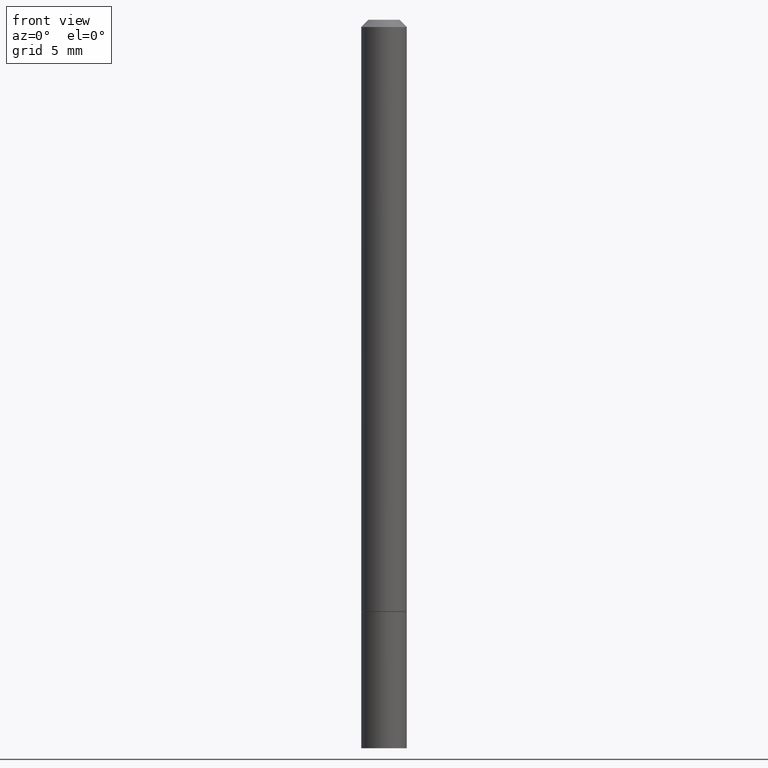
[diagram: clean part render]
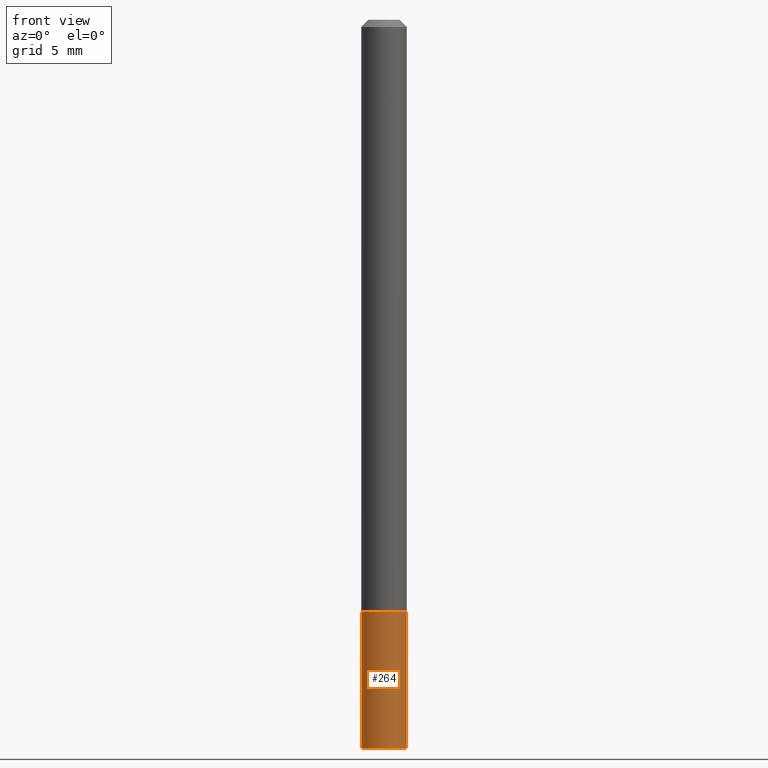
[diagram: same view with one face highlighted and labeled with its STEP entity id]
A machine part, front view. The second image highlights one B-rep face of the part: STEP entity #264.
In plain terms, the highlighted cylindrical surface (edge-blend (fillet) strip) has radius 1.5875 mm, axis along (-0, 0, 1).
Its self-contained STEP definition (entity closure, byte-faithful):
#9 = VERTEX_POINT ( 'NONE', #109 ) ;
#26 = DIRECTION ( 'NONE',  ( -2.445468806185136877E-29, 3.491481338843145188E-15, 1.000000000000000000 ) ) ;
#35 = EDGE_LOOP ( 'NONE', ( #156, #94, #207, #153 ) ) ;
#46 = DIRECTION ( 'NONE',  ( -2.445468806185136597E-29, 3.491481338843145583E-15, 1.000000000000000000 ) ) ;
#49 = CARTESIAN_POINT ( 'NONE',  ( 0.06250000000000001388, -4.364351673553918173E-16, 3.047610484872460571E-30 ) ) ;
#75 = EDGE_CURVE ( 'NONE', #203, #9, #193, .T. ) ;
#81 = CARTESIAN_POINT ( 'NONE',  ( 3.973886810050846970E-29, -5.673657175620112213E-15, -1.625000000000000000 ) ) ;
#83 = DIRECTION ( 'NONE',  ( -2.445468806185136597E-29, 3.491481338843145583E-15, 1.000000000000000000 ) ) ;
#92 = VERTEX_POINT ( 'NONE', #301 ) ;
#94 = ORIENTED_EDGE ( 'NONE', *, *, #75, .T. ) ;
#95 = CARTESIAN_POINT ( 'NONE',  ( -0.06250000000000001388, -5.884220716803138678E-15, -1.625000000000000000 ) ) ;
#109 = CARTESIAN_POINT ( 'NONE',  ( 0.06250000000000001388, -7.419397845041682046E-15, -2.000000000000000000 ) ) ;
#114 = VECTOR ( 'NONE', #298, 39.37007874015748143 ) ;
#129 = CYLINDRICAL_SURFACE ( 'NONE', #217, 0.06250000000000001388 ) ;
#132 = DIRECTION ( 'NONE',  ( 1.000000000000000000, -6.982962677686261189E-15, 0.000000000000000000 ) ) ;
#136 = EDGE_CURVE ( 'NONE', #203, #181, #257, .T. ) ;
#138 = DIRECTION ( 'NONE',  ( 1.000000000000000000, -6.982962677686267499E-15, 4.876176775795935793E-29 ) ) ;
#153 = ORIENTED_EDGE ( 'NONE', *, *, #195, .F. ) ;
#156 = ORIENTED_EDGE ( 'NONE', *, *, #136, .F. ) ;
#168 = AXIS2_PLACEMENT_3D ( 'NONE', #81, #83, #192 ) ;
#181 = VERTEX_POINT ( 'NONE', #95 ) ;
#187 = CIRCLE ( 'NONE', #168, 0.06250000000000001388 ) ;
#192 = DIRECTION ( 'NONE',  ( 1.000000000000000000, -6.982962677686261189E-15, 0.000000000000000000 ) ) ;
#193 = CIRCLE ( 'NONE', #296, 0.06250000000000001388 ) ;
#195 = EDGE_CURVE ( 'NONE', #181, #92, #187, .T. ) ;
#203 = VERTEX_POINT ( 'NONE', #339 ) ;
#206 = CARTESIAN_POINT ( 'NONE',  ( -0.06250000000000001388, 4.440892098500627148E-16, -3.074334431409317165E-30 ) ) ;
#207 = ORIENTED_EDGE ( 'NONE', *, *, #239, .T. ) ;
#216 = CARTESIAN_POINT ( 'NONE',  ( 4.890937612370273194E-29, -6.982962677686291165E-15, -2.000000000000000000 ) ) ;
#217 = AXIS2_PLACEMENT_3D ( 'NONE', #363, #218, #138 ) ;
#218 = DIRECTION ( 'NONE',  ( -2.445468806185136597E-29, 3.491481338843145583E-15, 1.000000000000000000 ) ) ;
#239 = EDGE_CURVE ( 'NONE', #9, #92, #250, .T. ) ;
#243 = VECTOR ( 'NONE', #26, 39.37007874015748143 ) ;
#250 = LINE ( 'NONE', #49, #243 ) ;
#257 = LINE ( 'NONE', #206, #114 ) ;
#264 = ADVANCED_FACE ( 'NONE', ( #279 ), #129, .T. ) ;
#279 = FACE_OUTER_BOUND ( 'NONE', #35, .T. ) ;
#296 = AXIS2_PLACEMENT_3D ( 'NONE', #216, #46, #132 ) ;
#298 = DIRECTION ( 'NONE',  ( -2.445468806185136877E-29, 3.491481338843145188E-15, 1.000000000000000000 ) ) ;
#301 = CARTESIAN_POINT ( 'NONE',  ( 0.06250000000000001388, -6.110092342975503093E-15, -1.625000000000000000 ) ) ;
#339 = CARTESIAN_POINT ( 'NONE',  ( -0.06250000000000001388, -5.884220716803138678E-15, -2.000000000000000000 ) ) ;
#363 = CARTESIAN_POINT ( 'NONE',  ( 0.000000000000000000, 0.000000000000000000, 0.000000000000000000 ) ) ;